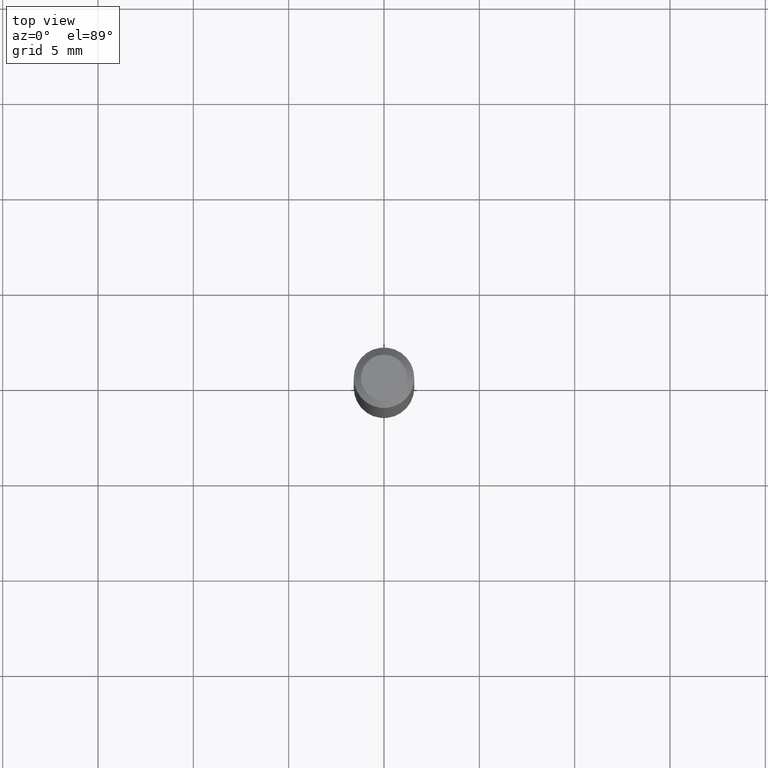
[diagram: clean part render]
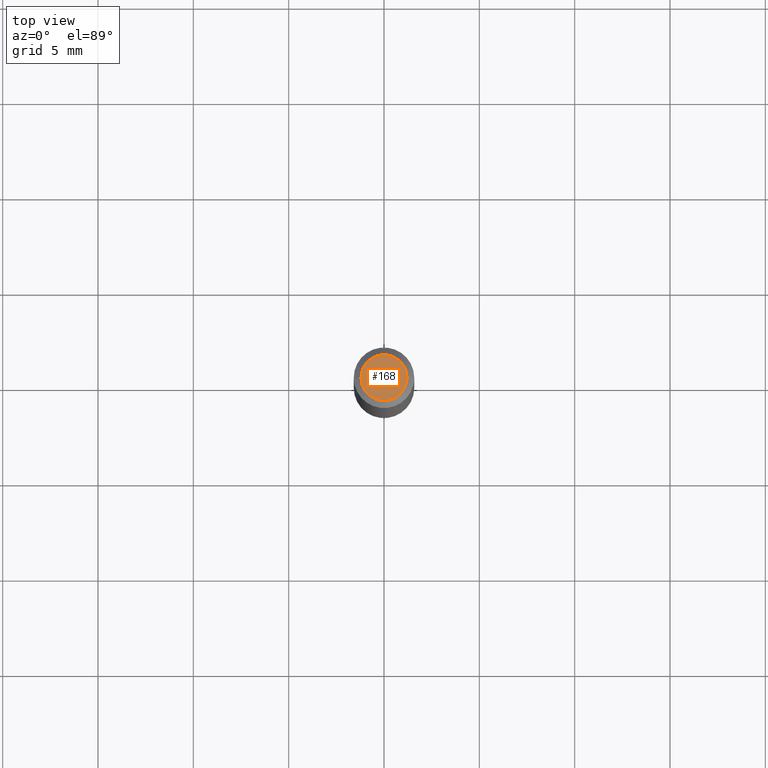
[diagram: same view with one face highlighted and labeled with its STEP entity id]
A machine part, top view. The second image highlights one B-rep face of the part: STEP entity #168.
In plain terms, the highlighted planar face has unit normal (0, -0, -1).
Its self-contained STEP definition (entity closure, byte-faithful):
#17 = EDGE_CURVE ( 'NONE', #475, #62, #504, .T. ) ;
#40 = AXIS2_PLACEMENT_3D ( 'NONE', #273, #385, #465 ) ;
#50 = DIRECTION ( 'NONE',  ( -2.445468806185136597E-29, 3.491481338843145583E-15, 1.000000000000000000 ) ) ;
#59 = DIRECTION ( 'NONE',  ( 1.000000000000000000, -6.982962677686266711E-15, 4.852736867747365086E-29 ) ) ;
#62 = VERTEX_POINT ( 'NONE', #337 ) ;
#89 = CARTESIAN_POINT ( 'NONE',  ( -6.680649051745406845E-45, 9.538196290434862081E-31, 2.731847993664263218E-16 ) ) ;
#95 = CIRCLE ( 'NONE', #329, 0.04750000000000000749 ) ;
#168 = ADVANCED_FACE ( 'NONE', ( #509 ), #349, .F. ) ;
#173 = AXIS2_PLACEMENT_3D ( 'NONE', #307, #50, #59 ) ;
#175 = DIRECTION ( 'NONE',  ( -2.445468806185136597E-29, 3.491481338843145583E-15, 1.000000000000000000 ) ) ;
#191 = ORIENTED_EDGE ( 'NONE', *, *, #17, .T. ) ;
#256 = DIRECTION ( 'NONE',  ( 1.000000000000000000, -6.982962677686266711E-15, 4.852736867747365086E-29 ) ) ;
#273 = CARTESIAN_POINT ( 'NONE',  ( 3.316907271900976589E-16, 0.04750000000000000749, -2.925296391183627249E-17 ) ) ;
#307 = CARTESIAN_POINT ( 'NONE',  ( -6.680649051745406845E-45, 9.538196290434862081E-31, 2.731847993664263218E-16 ) ) ;
#323 = EDGE_LOOP ( 'NONE', ( #191, #502 ) ) ;
#329 = AXIS2_PLACEMENT_3D ( 'NONE', #89, #175, #256 ) ;
#337 = CARTESIAN_POINT ( 'NONE',  ( 0.04750000000000000749, -4.035134999187568762E-16, 2.731847993664288856E-16 ) ) ;
#349 = PLANE ( 'NONE',  #40 ) ;
#364 = EDGE_CURVE ( 'NONE', #62, #475, #95, .T. ) ;
#385 = DIRECTION ( 'NONE',  ( 2.438088387897960049E-29, -3.491481338843145188E-15, -1.000000000000000000 ) ) ;
#465 = DIRECTION ( 'NONE',  ( -1.000000000000000000, 6.982962677686265922E-15, -4.876176775795935793E-29 ) ) ;
#475 = VERTEX_POINT ( 'NONE', #480 ) ;
#480 = CARTESIAN_POINT ( 'NONE',  ( -0.04750000000000000749, 3.578768372314221353E-16, 2.731847993664239060E-16 ) ) ;
#502 = ORIENTED_EDGE ( 'NONE', *, *, #364, .T. ) ;
#504 = CIRCLE ( 'NONE', #173, 0.04750000000000000749 ) ;
#509 = FACE_OUTER_BOUND ( 'NONE', #323, .T. ) ;